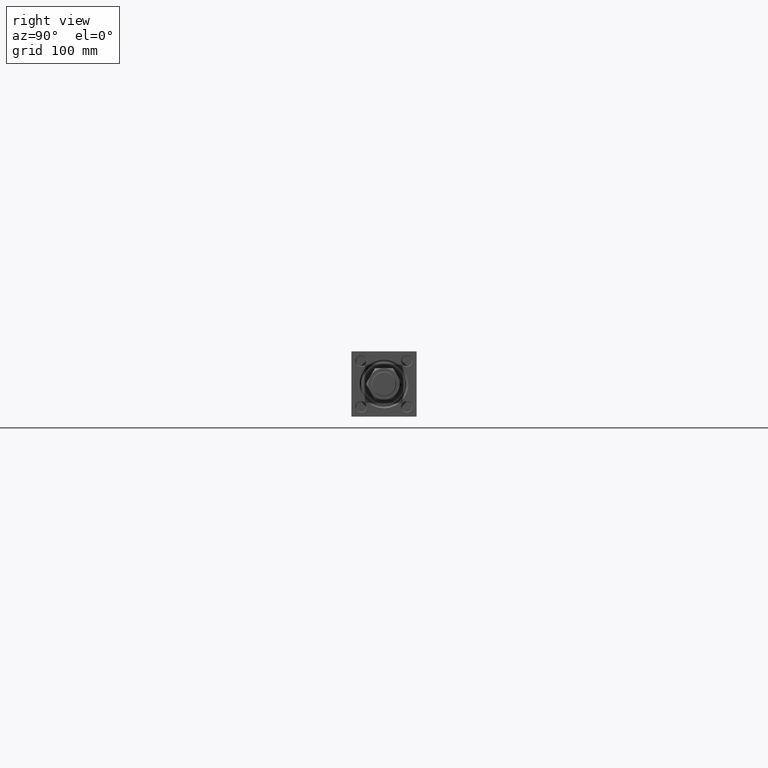
[diagram: clean part render]
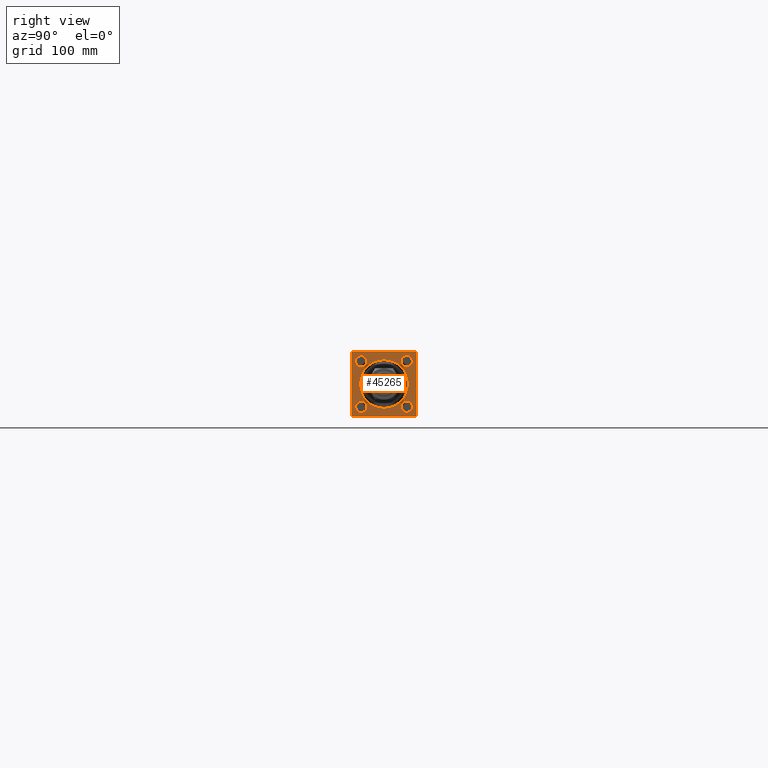
[diagram: same view with one face highlighted and labeled with its STEP entity id]
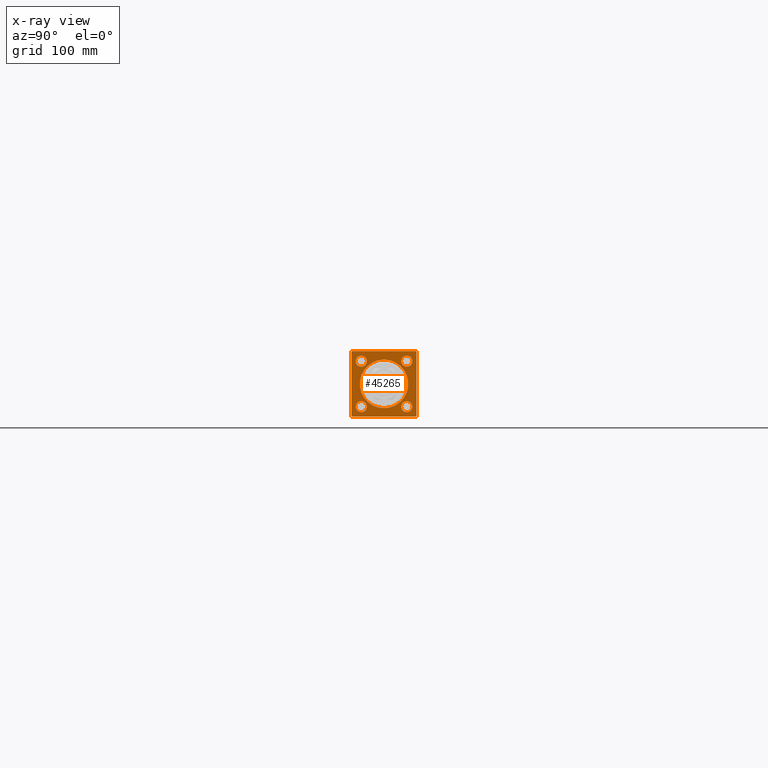
[diagram: x-ray of the same camera — body ghosted, the highlighted face saturated]
A machine part, right view. The second image highlights one B-rep face of the part: STEP entity #45265.
The next image is the same camera in x-ray: the body ghosted, the highlighted face saturated — about 0% of this face is hidden behind the body in this view.
In plain terms, the highlighted planar face has unit normal (-1, 0, 0).
Its self-contained STEP definition (entity closure, byte-faithful):
#4 = EDGE_CURVE ( 'NONE', #30085, #10753, #6924, .T. ) ;
#444 = DIRECTION ( 'NONE',  ( -1.000000000000000000, -0.000000000000000000, 0.000000000000000000 ) ) ;
#601 = FACE_BOUND ( 'NONE', #9221, .T. ) ;
#1047 = EDGE_LOOP ( 'NONE', ( #20166, #1593 ) ) ;
#1049 = EDGE_LOOP ( 'NONE', ( #25584, #31077 ) ) ;
#1152 = DIRECTION ( 'NONE',  ( 0.000000000000000000, 0.000000000000000000, 1.000000000000000000 ) ) ;
#1286 = ORIENTED_EDGE ( 'NONE', *, *, #44093, .T. ) ;
#1593 = ORIENTED_EDGE ( 'NONE', *, *, #8506, .T. ) ;
#2051 = CIRCLE ( 'NONE', #22991, 6.499999999999724665 ) ;
#2143 = DIRECTION ( 'NONE',  ( -1.000000000000000000, -0.000000000000000000, 0.000000000000000000 ) ) ;
#2246 = ORIENTED_EDGE ( 'NONE', *, *, #2315, .F. ) ;
#2315 = EDGE_CURVE ( 'NONE', #17605, #17862, #32073, .T. ) ;
#2751 = DIRECTION ( 'NONE',  ( -1.000000000000000000, -0.000000000000000000, 0.000000000000000000 ) ) ;
#2858 = CARTESIAN_POINT ( 'NONE',  ( 734.0000000000000000, 26.14999999999999858, 26.15000000000000213 ) ) ;
#3575 = CARTESIAN_POINT ( 'NONE',  ( 734.0000000000000000, -26.15000000000000213, -19.65000000000027569 ) ) ;
#4375 = VERTEX_POINT ( 'NONE', #3575 ) ;
#4383 = DIRECTION ( 'NONE',  ( 0.000000000000000000, 0.000000000000000000, 1.000000000000000000 ) ) ;
#5401 = CARTESIAN_POINT ( 'NONE',  ( 734.0000000000000000, 26.14999999999999858, 19.65000000000027214 ) ) ;
#5435 = EDGE_CURVE ( 'NONE', #4375, #20012, #13843, .T. ) ;
#5462 = DIRECTION ( 'NONE',  ( 0.000000000000000000, -1.000000000000000000, 0.000000000000000000 ) ) ;
#5632 = DIRECTION ( 'NONE',  ( -1.000000000000000000, -0.000000000000000000, 0.000000000000000000 ) ) ;
#5799 = VERTEX_POINT ( 'NONE', #5855 ) ;
#5855 = CARTESIAN_POINT ( 'NONE',  ( 734.0000000000000000, -26.14999999999999147, 19.65000000000027214 ) ) ;
#5971 = ORIENTED_EDGE ( 'NONE', *, *, #7414, .T. ) ;
#6404 = ORIENTED_EDGE ( 'NONE', *, *, #5435, .T. ) ;
#6414 = CARTESIAN_POINT ( 'NONE',  ( 734.0000000000000000, -36.99999999999995737, -37.50000000000000000 ) ) ;
#6566 = DIRECTION ( 'NONE',  ( 0.000000000000000000, -1.000000000000000000, -1.850371707708594316E-16 ) ) ;
#6924 = CIRCLE ( 'NONE', #34579, 27.99999999999980105 ) ;
#7291 = DIRECTION ( 'NONE',  ( 0.000000000000000000, 0.000000000000000000, 1.000000000000000000 ) ) ;
#7414 = EDGE_CURVE ( 'NONE', #47456, #39987, #46195, .T. ) ;
#7521 = CARTESIAN_POINT ( 'NONE',  ( 734.0000000000000000, 37.50000000000000000, -37.00000000000004974 ) ) ;
#7531 = CARTESIAN_POINT ( 'NONE',  ( 734.0000000000000000, -26.14999999999999147, 26.14999999999999503 ) ) ;
#7782 = DIRECTION ( 'NONE',  ( -0.000000000000000000, 0.7071067811865426878, 0.7071067811865524577 ) ) ;
#7988 = CARTESIAN_POINT ( 'NONE',  ( 734.0000000000000000, 26.14999999999999858, -19.65000000000027569 ) ) ;
#8506 = EDGE_CURVE ( 'NONE', #20886, #8899, #24027, .T. ) ;
#8731 = CARTESIAN_POINT ( 'NONE',  ( 734.0000000000000000, 37.00000000000005684, -37.50000000000000000 ) ) ;
#8899 = VERTEX_POINT ( 'NONE', #5401 ) ;
#9221 = EDGE_LOOP ( 'NONE', ( #45789, #11898 ) ) ;
#9978 = EDGE_CURVE ( 'NONE', #19311, #30274, #29359, .T. ) ;
#10368 = LINE ( 'NONE', #6414, #38537 ) ;
#10450 = DIRECTION ( 'NONE',  ( -1.000000000000000000, -0.000000000000000000, 0.000000000000000000 ) ) ;
#10753 = VERTEX_POINT ( 'NONE', #51439 ) ;
#10826 = AXIS2_PLACEMENT_3D ( 'NONE', #37639, #5632, #12754 ) ;
#11058 = VECTOR ( 'NONE', #20259, 1000.000000000000000 ) ;
#11521 = AXIS2_PLACEMENT_3D ( 'NONE', #2858, #41962, #30692 ) ;
#11827 = CARTESIAN_POINT ( 'NONE',  ( 734.0000000000000000, 37.50000000000000000, -37.00000000000004974 ) ) ;
#11898 = ORIENTED_EDGE ( 'NONE', *, *, #29257, .T. ) ;
#12048 = EDGE_LOOP ( 'NONE', ( #28945, #6404 ) ) ;
#12438 = DIRECTION ( 'NONE',  ( -0.000000000000000000, -0.7071067811866260655, -0.7071067811864690800 ) ) ;
#12754 = DIRECTION ( 'NONE',  ( 0.000000000000000000, 0.000000000000000000, 1.000000000000000000 ) ) ;
#13843 = CIRCLE ( 'NONE', #26438, 6.499999999999724665 ) ;
#13989 = EDGE_CURVE ( 'NONE', #8899, #20886, #18226, .T. ) ;
#14054 = VERTEX_POINT ( 'NONE', #46428 ) ;
#14392 = DIRECTION ( 'NONE',  ( 0.000000000000000000, 0.000000000000000000, 1.000000000000000000 ) ) ;
#14479 = FACE_OUTER_BOUND ( 'NONE', #42688, .T. ) ;
#14776 = CARTESIAN_POINT ( 'NONE',  ( 734.0000000000000000, 26.14999999999999858, -32.64999999999973568 ) ) ;
#15015 = DIRECTION ( 'NONE',  ( 0.000000000000000000, 0.000000000000000000, 1.000000000000000000 ) ) ;
#15400 = DIRECTION ( 'NONE',  ( 0.000000000000000000, 0.000000000000000000, 1.000000000000000000 ) ) ;
#16514 = VECTOR ( 'NONE', #5462, 1000.000000000000000 ) ;
#16611 = FACE_BOUND ( 'NONE', #23680, .T. ) ;
#16690 = AXIS2_PLACEMENT_3D ( 'NONE', #20646, #444, #4383 ) ;
#16856 = CARTESIAN_POINT ( 'NONE',  ( 734.0000000000000000, 37.50000000000000000, 37.49999999999999289 ) ) ;
#17605 = VERTEX_POINT ( 'NONE', #18491 ) ;
#17700 = LINE ( 'NONE', #34918, #50005 ) ;
#17862 = VERTEX_POINT ( 'NONE', #11827 ) ;
#17992 = EDGE_CURVE ( 'NONE', #10753, #30085, #46016, .T. ) ;
#18226 = CIRCLE ( 'NONE', #11521, 6.499999999999731770 ) ;
#18419 = PLANE ( 'NONE',  #29057 ) ;
#18491 = CARTESIAN_POINT ( 'NONE',  ( 734.0000000000000000, 37.50000000000000000, 37.00000000000004974 ) ) ;
#18981 = AXIS2_PLACEMENT_3D ( 'NONE', #34335, #37736, #14392 ) ;
#19311 = VERTEX_POINT ( 'NONE', #8731 ) ;
#20012 = VERTEX_POINT ( 'NONE', #28288 ) ;
#20166 = ORIENTED_EDGE ( 'NONE', *, *, #13989, .T. ) ;
#20259 = DIRECTION ( 'NONE',  ( 0.000000000000000000, 0.000000000000000000, -1.000000000000000000 ) ) ;
#20319 = CARTESIAN_POINT ( 'NONE',  ( 734.0000000000000000, 37.00000000000005684, 37.49999999999999289 ) ) ;
#20363 = LINE ( 'NONE', #7521, #43610 ) ;
#20621 = VECTOR ( 'NONE', #6566, 1000.000000000000000 ) ;
#20646 = CARTESIAN_POINT ( 'NONE',  ( 734.0000000000000000, 0.000000000000000000, 0.000000000000000000 ) ) ;
#20886 = VERTEX_POINT ( 'NONE', #48511 ) ;
#20977 = EDGE_CURVE ( 'NONE', #21815, #30274, #10368, .T. ) ;
#21101 = CARTESIAN_POINT ( 'NONE',  ( 734.0000000000000000, -26.14999999999999147, 26.14999999999999503 ) ) ;
#21481 = ORIENTED_EDGE ( 'NONE', *, *, #50752, .T. ) ;
#21627 = CARTESIAN_POINT ( 'NONE',  ( 734.0000000000000000, -36.99999999999995737, -37.50000000000000000 ) ) ;
#21815 = VERTEX_POINT ( 'NONE', #46372 ) ;
#21976 = EDGE_CURVE ( 'NONE', #19311, #17862, #20363, .T. ) ;
#22137 = VECTOR ( 'NONE', #12438, 1000.000000000000114 ) ;
#22638 = CARTESIAN_POINT ( 'NONE',  ( 734.0000000000000000, 26.14999999999999858, -26.15000000000000213 ) ) ;
#22747 = CARTESIAN_POINT ( 'NONE',  ( 734.0000000000000000, -36.99999999999982947, 37.49999999999997868 ) ) ;
#22783 = EDGE_CURVE ( 'NONE', #5799, #46699, #24402, .T. ) ;
#22991 = AXIS2_PLACEMENT_3D ( 'NONE', #22638, #30768, #15015 ) ;
#23041 = CARTESIAN_POINT ( 'NONE',  ( 734.0000000000000000, -26.15000000000000213, -26.15000000000000213 ) ) ;
#23680 = EDGE_LOOP ( 'NONE', ( #33706, #21481 ) ) ;
#24027 = CIRCLE ( 'NONE', #18981, 6.499999999999731770 ) ;
#24220 = ORIENTED_EDGE ( 'NONE', *, *, #46346, .T. ) ;
#24233 = ORIENTED_EDGE ( 'NONE', *, *, #20977, .T. ) ;
#24402 = CIRCLE ( 'NONE', #34446, 6.499999999999724665 ) ;
#24940 = VECTOR ( 'NONE', #44975, 1000.000000000000114 ) ;
#25584 = ORIENTED_EDGE ( 'NONE', *, *, #4, .T. ) ;
#25820 = ORIENTED_EDGE ( 'NONE', *, *, #9978, .F. ) ;
#26162 = AXIS2_PLACEMENT_3D ( 'NONE', #21101, #37101, #1152 ) ;
#26438 = AXIS2_PLACEMENT_3D ( 'NONE', #45804, #2751, #46319 ) ;
#28288 = CARTESIAN_POINT ( 'NONE',  ( 734.0000000000000000, -26.15000000000000213, -32.64999999999973568 ) ) ;
#28676 = CIRCLE ( 'NONE', #26162, 6.499999999999724665 ) ;
#28945 = ORIENTED_EDGE ( 'NONE', *, *, #32968, .T. ) ;
#28977 = LINE ( 'NONE', #20319, #24940 ) ;
#29057 = AXIS2_PLACEMENT_3D ( 'NONE', #49921, #2143, #38078 ) ;
#29257 = EDGE_CURVE ( 'NONE', #46699, #5799, #28676, .T. ) ;
#29359 = LINE ( 'NONE', #49310, #16514 ) ;
#30085 = VERTEX_POINT ( 'NONE', #34278 ) ;
#30274 = VERTEX_POINT ( 'NONE', #21627 ) ;
#30692 = DIRECTION ( 'NONE',  ( 0.000000000000000000, 0.000000000000000000, 1.000000000000000000 ) ) ;
#30768 = DIRECTION ( 'NONE',  ( -1.000000000000000000, -0.000000000000000000, 0.000000000000000000 ) ) ;
#31038 = VERTEX_POINT ( 'NONE', #7988 ) ;
#31077 = ORIENTED_EDGE ( 'NONE', *, *, #17992, .T. ) ;
#31430 = DIRECTION ( 'NONE',  ( -1.000000000000000000, -0.000000000000000000, 0.000000000000000000 ) ) ;
#31848 = CARTESIAN_POINT ( 'NONE',  ( 734.0000000000000000, -37.50000000000000000, 36.99999999999992184 ) ) ;
#32073 = LINE ( 'NONE', #16856, #11058 ) ;
#32968 = EDGE_CURVE ( 'NONE', #20012, #4375, #39654, .T. ) ;
#33706 = ORIENTED_EDGE ( 'NONE', *, *, #35660, .T. ) ;
#34171 = FACE_BOUND ( 'NONE', #1049, .T. ) ;
#34278 = CARTESIAN_POINT ( 'NONE',  ( 734.0000000000000000, 0.000000000000000000, -27.99999999999980105 ) ) ;
#34335 = CARTESIAN_POINT ( 'NONE',  ( 734.0000000000000000, 26.14999999999999858, 26.15000000000000213 ) ) ;
#34446 = AXIS2_PLACEMENT_3D ( 'NONE', #7531, #10450, #15400 ) ;
#34579 = AXIS2_PLACEMENT_3D ( 'NONE', #46214, #45182, #42253 ) ;
#34641 = CARTESIAN_POINT ( 'NONE',  ( 734.0000000000000000, 37.50000000000000000, 37.49999999999999289 ) ) ;
#34918 = CARTESIAN_POINT ( 'NONE',  ( 734.0000000000000000, -37.50000000000000000, 37.49999999999997868 ) ) ;
#34998 = CIRCLE ( 'NONE', #10826, 6.499999999999724665 ) ;
#35660 = EDGE_CURVE ( 'NONE', #43072, #31038, #2051, .T. ) ;
#36027 = EDGE_CURVE ( 'NONE', #39987, #14054, #43642, .T. ) ;
#36265 = CARTESIAN_POINT ( 'NONE',  ( 734.0000000000000000, -26.14999999999999147, 32.64999999999972147 ) ) ;
#36280 = FACE_BOUND ( 'NONE', #1047, .T. ) ;
#37101 = DIRECTION ( 'NONE',  ( -1.000000000000000000, -0.000000000000000000, 0.000000000000000000 ) ) ;
#37639 = CARTESIAN_POINT ( 'NONE',  ( 734.0000000000000000, 26.14999999999999858, -26.15000000000000213 ) ) ;
#37736 = DIRECTION ( 'NONE',  ( -1.000000000000000000, -0.000000000000000000, 0.000000000000000000 ) ) ;
#38078 = DIRECTION ( 'NONE',  ( 0.000000000000000000, 0.000000000000000000, 1.000000000000000000 ) ) ;
#38409 = DIRECTION ( 'NONE',  ( 0.000000000000000000, 0.7071067811865474617, -0.7071067811865474617 ) ) ;
#38537 = VECTOR ( 'NONE', #38409, 1000.000000000000114 ) ;
#39654 = CIRCLE ( 'NONE', #45536, 6.499999999999724665 ) ;
#39987 = VERTEX_POINT ( 'NONE', #22747 ) ;
#41552 = DIRECTION ( 'NONE',  ( 0.000000000000000000, -9.251858538542972814E-17, -1.000000000000000000 ) ) ;
#41962 = DIRECTION ( 'NONE',  ( -1.000000000000000000, -0.000000000000000000, 0.000000000000000000 ) ) ;
#42253 = DIRECTION ( 'NONE',  ( 0.000000000000000000, 0.000000000000000000, 1.000000000000000000 ) ) ;
#42688 = EDGE_LOOP ( 'NONE', ( #1286, #24233, #25820, #51467, #2246, #24220, #5971, #49456 ) ) ;
#43072 = VERTEX_POINT ( 'NONE', #14776 ) ;
#43610 = VECTOR ( 'NONE', #7782, 1000.000000000000000 ) ;
#43642 = LINE ( 'NONE', #31848, #22137 ) ;
#44093 = EDGE_CURVE ( 'NONE', #14054, #21815, #17700, .T. ) ;
#44975 = DIRECTION ( 'NONE',  ( 0.000000000000000000, -0.7071067811865474617, 0.7071067811865474617 ) ) ;
#45182 = DIRECTION ( 'NONE',  ( -1.000000000000000000, -0.000000000000000000, 0.000000000000000000 ) ) ;
#45265 = ADVANCED_FACE ( 'NONE', ( #36280, #601, #48374, #16611, #34171, #14479 ), #18419, .F. ) ;
#45536 = AXIS2_PLACEMENT_3D ( 'NONE', #23041, #31430, #7291 ) ;
#45789 = ORIENTED_EDGE ( 'NONE', *, *, #22783, .T. ) ;
#45804 = CARTESIAN_POINT ( 'NONE',  ( 734.0000000000000000, -26.15000000000000213, -26.15000000000000213 ) ) ;
#46016 = CIRCLE ( 'NONE', #16690, 27.99999999999980105 ) ;
#46195 = LINE ( 'NONE', #34641, #20621 ) ;
#46214 = CARTESIAN_POINT ( 'NONE',  ( 734.0000000000000000, 0.000000000000000000, 0.000000000000000000 ) ) ;
#46319 = DIRECTION ( 'NONE',  ( 0.000000000000000000, 0.000000000000000000, 1.000000000000000000 ) ) ;
#46346 = EDGE_CURVE ( 'NONE', #17605, #47456, #28977, .T. ) ;
#46372 = CARTESIAN_POINT ( 'NONE',  ( 734.0000000000000000, -37.50000000000000711, -36.99999999999995026 ) ) ;
#46428 = CARTESIAN_POINT ( 'NONE',  ( 734.0000000000000000, -37.50000000000000000, 36.99999999999992184 ) ) ;
#46699 = VERTEX_POINT ( 'NONE', #36265 ) ;
#47456 = VERTEX_POINT ( 'NONE', #49010 ) ;
#48374 = FACE_BOUND ( 'NONE', #12048, .T. ) ;
#48511 = CARTESIAN_POINT ( 'NONE',  ( 734.0000000000000000, 26.14999999999999858, 32.64999999999973568 ) ) ;
#49010 = CARTESIAN_POINT ( 'NONE',  ( 734.0000000000000000, 37.00000000000005684, 37.49999999999999289 ) ) ;
#49310 = CARTESIAN_POINT ( 'NONE',  ( 734.0000000000000000, 37.50000000000000000, -37.50000000000000000 ) ) ;
#49456 = ORIENTED_EDGE ( 'NONE', *, *, #36027, .T. ) ;
#49921 = CARTESIAN_POINT ( 'NONE',  ( 734.0000000000000000, 0.000000000000000000, 0.000000000000000000 ) ) ;
#50005 = VECTOR ( 'NONE', #41552, 1000.000000000000000 ) ;
#50752 = EDGE_CURVE ( 'NONE', #31038, #43072, #34998, .T. ) ;
#51439 = CARTESIAN_POINT ( 'NONE',  ( 734.0000000000000000, 3.429011037612565216E-15, 27.99999999999980105 ) ) ;
#51467 = ORIENTED_EDGE ( 'NONE', *, *, #21976, .T. ) ;